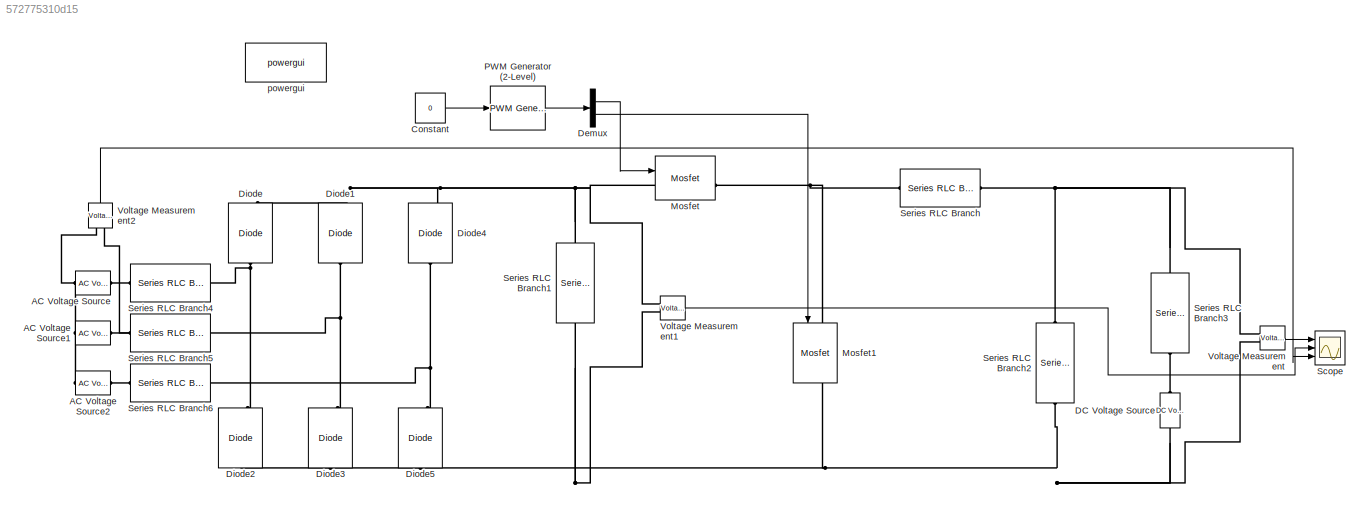
MODEL slx_572775310d15
KIND model
CONFIG AbsTol = auto
CONFIG EnableMultiTasking = off
CONFIG FixedStep = auto
CONFIG MaxStep = auto
CONFIG MinStep = auto
CONFIG RelTol = 1e-3
CONFIG SampleTimeConstraint = Unconstrained
CONFIG SolverName = VariableStepAuto
CONFIG StartTime = 0.0
CONFIG StopTime = 0.2
BLOCK [Reference] AC Voltage Source  REF=powerlib/Electrical
Sources/AC Voltage Source
  Ports = [0, 0, 0, 0, 0, 1, 1]
  SourceBlock = powerlib/Electrical\nSources/AC Voltage Source
  SourceProductBaseCode = PS
  SourceType = AC Voltage Source
BLOCK [Reference] AC Voltage Source1  REF=powerlib/Electrical
Sources/AC Voltage Source
  Ports = [0, 0, 0, 0, 0, 1, 1]
  SourceBlock = powerlib/Electrical\nSources/AC Voltage Source
  SourceProductBaseCode = PS
  SourceType = AC Voltage Source
BLOCK [Reference] AC Voltage Source2  REF=powerlib/Electrical
Sources/AC Voltage Source
  Ports = [0, 0, 0, 0, 0, 1, 1]
  SourceBlock = powerlib/Electrical\nSources/AC Voltage Source
  SourceProductBaseCode = PS
  SourceType = AC Voltage Source
BLOCK [Constant] Constant
  Value = 0
BLOCK [Reference] DC Voltage Source  REF=powerlib/Electrical
Sources/DC Voltage Source
  NameLocation = right
  Ports = [0, 0, 0, 0, 0, 1, 1]
  SourceBlock = powerlib/Electrical\nSources/DC Voltage Source
  SourceProductBaseCode = PS
  SourceType = DC Voltage Source
BLOCK [Demux] Demux
  Outputs = 2
  Ports = [1, 2]
BLOCK [Reference] Diode  REF=powerlib/Power
Electronics/Diode
  NameLocation = right
  Ports = [0, 1, 0, 0, 0, 1, 1]
  SourceBlock = powerlib/Power\nElectronics/Diode
  SourceProductBaseCode = PS
  SourceType = Diode
BLOCK [Reference] Diode1  REF=powerlib/Power
Electronics/Diode
  NameLocation = right
  Ports = [0, 1, 0, 0, 0, 1, 1]
  SourceBlock = powerlib/Power\nElectronics/Diode
  SourceProductBaseCode = PS
  SourceType = Diode
BLOCK [Reference] Diode2  REF=powerlib/Power
Electronics/Diode
  NameLocation = right
  Ports = [0, 1, 0, 0, 0, 1, 1]
  SourceBlock = powerlib/Power\nElectronics/Diode
  SourceProductBaseCode = PS
  SourceType = Diode
BLOCK [Reference] Diode3  REF=powerlib/Power
Electronics/Diode
  NameLocation = right
  Ports = [0, 1, 0, 0, 0, 1, 1]
  SourceBlock = powerlib/Power\nElectronics/Diode
  SourceProductBaseCode = PS
  SourceType = Diode
BLOCK [Reference] Diode4  REF=powerlib/Power
Electronics/Diode
  NameLocation = right
  Ports = [0, 1, 0, 0, 0, 1, 1]
  SourceBlock = powerlib/Power\nElectronics/Diode
  SourceProductBaseCode = PS
  SourceType = Diode
BLOCK [Reference] Diode5  REF=powerlib/Power
Electronics/Diode
  NameLocation = right
  Ports = [0, 1, 0, 0, 0, 1, 1]
  SourceBlock = powerlib/Power\nElectronics/Diode
  SourceProductBaseCode = PS
  SourceType = Diode
BLOCK [Reference] Mosfet  REF=powerlib/Power
Electronics/Mosfet
  Ports = [1, 1, 0, 0, 0, 1, 1]
  SourceBlock = powerlib/Power\nElectronics/Mosfet
  SourceProductBaseCode = PS
  SourceType = Mosfet
BLOCK [Reference] Mosfet1  REF=powerlib/Power
Electronics/Mosfet
  NameLocation = right
  Ports = [1, 1, 0, 0, 0, 1, 1]
  SourceBlock = powerlib/Power\nElectronics/Mosfet
  SourceProductBaseCode = PS
  SourceType = Mosfet
BLOCK [Reference] PWM Generator (2-Level)  REF=powerlib_meascontrol/Pulse & Signal
Generators/PWM Generator
(2-Level)
  Ports = [1, 1]
  SourceBlock = powerlib_meascontrol/Pulse & Signal\nGenerators/PWM Generator\n(2-Level)
  SourceProductBaseCode = PS
  SourceType = PWM Generator (2-Level)
BLOCK [Scope] Scope
  Floating = off
  NumInputPorts = 3
  Ports = [3]
  ScopeSpecificationString = Simulink.scopes.TimeScopeBlockCfg('CurrentConfiguration', extmgr.ConfigurationSet(extmgr.Configuration('Core','General UI',true),extmgr.Configuration('Core','Source UI',true),extmgr.Configuration('Sources','WiredSimulink',true),extmgr.Configuration('Visuals','Time Domain',true,'SerializedDisplays',{struct('MinYLimReal','-200.00000','MaxYLimReal','287.91501','YLabelReal','','MinYLimMag',' 0.00000',...<+1445ch>
BLOCK [Reference] Series RLC Branch  REF=powerlib/Elements/Series RLC Branch
  Ports = [0, 0, 0, 0, 0, 1, 1]
  SourceBlock = powerlib/Elements/Series RLC Branch
  SourceProductBaseCode = PS
  SourceType = Series RLC Branch
BLOCK [Reference] Series RLC Branch1  REF=powerlib/Elements/Series RLC Branch
  NameLocation = left
  Ports = [0, 0, 0, 0, 0, 1, 1]
  SourceBlock = powerlib/Elements/Series RLC Branch
  SourceProductBaseCode = PS
  SourceType = Series RLC Branch
BLOCK [Reference] Series RLC Branch2  REF=powerlib/Elements/Series RLC Branch
  NameLocation = left
  Ports = [0, 0, 0, 0, 0, 1, 1]
  SourceBlock = powerlib/Elements/Series RLC Branch
  SourceProductBaseCode = PS
  SourceType = Series RLC Branch
BLOCK [Reference] Series RLC Branch3  REF=powerlib/Elements/Series RLC Branch
  NameLocation = left
  Ports = [0, 0, 0, 0, 0, 1, 1]
  SourceBlock = powerlib/Elements/Series RLC Branch
  SourceProductBaseCode = PS
  SourceType = Series RLC Branch
BLOCK [Reference] Series RLC Branch4  REF=powerlib/Elements/Series RLC Branch
  Ports = [0, 0, 0, 0, 0, 1, 1]
  SourceBlock = powerlib/Elements/Series RLC Branch
  SourceProductBaseCode = PS
  SourceType = Series RLC Branch
BLOCK [Reference] Series RLC Branch5  REF=powerlib/Elements/Series RLC Branch
  Ports = [0, 0, 0, 0, 0, 1, 1]
  SourceBlock = powerlib/Elements/Series RLC Branch
  SourceProductBaseCode = PS
  SourceType = Series RLC Branch
BLOCK [Reference] Series RLC Branch6  REF=powerlib/Elements/Series RLC Branch
  Ports = [0, 0, 0, 0, 0, 1, 1]
  SourceBlock = powerlib/Elements/Series RLC Branch
  SourceProductBaseCode = PS
  SourceType = Series RLC Branch
BLOCK [Reference] Voltage Measurement  REF=powerlib/Measurements/Voltage Measurement
  Ports = [0, 1, 0, 0, 0, 2]
  SourceBlock = powerlib/Measurements/Voltage Measurement
  SourceProductBaseCode = PS
  SourceType = Voltage Measurement
  UserDataPersistent = on
BLOCK [Reference] Voltage Measurement1  REF=powerlib/Measurements/Voltage Measurement
  Ports = [0, 1, 0, 0, 0, 2]
  SourceBlock = powerlib/Measurements/Voltage Measurement
  SourceProductBaseCode = PS
  SourceType = Voltage Measurement
  UserDataPersistent = on
BLOCK [Reference] Voltage Measurement2  REF=powerlib/Measurements/Voltage Measurement
  NameLocation = right
  Ports = [0, 1, 0, 0, 0, 2]
  SourceBlock = powerlib/Measurements/Voltage Measurement
  SourceProductBaseCode = PS
  SourceType = Voltage Measurement
  UserDataPersistent = on
BLOCK [Reference] powergui  REF=powerlib/powergui
  Ports = []
  Priority = 1
  SourceBlock = powerlib/powergui
  SourceProductBaseCode = PS
  SourceType = PSB option menu block
LINE Constant:1 -> PWM Generator (2-Level):1
LINE Demux:1 -> Mosfet:1
LINE Demux:2 -> Mosfet1:1
LINE PWM Generator (2-Level):1 -> Demux:1
LINE Voltage Measurement1:1 -> Scope:2
LINE Voltage Measurement2:1 -> Scope:3
LINE Voltage Measurement:1 -> Scope:1
PNET net1: AC Voltage Source1:LConn1 -- AC Voltage Source2:LConn1 -- AC Voltage Source:LConn1 -- Voltage Measurement2:LConn1
PNET net2: AC Voltage Source1:RConn1 -- Series RLC Branch5:LConn1 -- Voltage Measurement2:LConn2
PLINE AC Voltage Source2:RConn1 -- Series RLC Branch6:LConn1
PLINE AC Voltage Source:RConn1 -- Series RLC Branch4:LConn1
PNET net3: DC Voltage Source:LConn1 -- Diode2:LConn1 -- Diode3:LConn1 -- Diode5:LConn1 -- Mosfet1:RConn1 -- Series RLC Branch1:RConn1 -- Series RLC Branch2:RConn1 -- Voltage Measurement1:LConn2 -- Voltage Measurement:LConn2
PLINE DC Voltage Source:RConn1 -- Series RLC Branch3:RConn1
PNET net4: Diode1:LConn1 -- Diode3:RConn1 -- Series RLC Branch5:RConn1
PNET net5: Diode1:RConn1 -- Diode4:RConn1 -- Diode:RConn1 -- Mosfet:LConn1 -- Series RLC Branch1:LConn1 -- Voltage Measurement1:LConn1
PNET net6: Diode2:RConn1 -- Diode:LConn1 -- Series RLC Branch4:RConn1
PNET net7: Diode4:LConn1 -- Diode5:RConn1 -- Series RLC Branch6:RConn1
PNET net8: Mosfet1:LConn1 -- Mosfet:RConn1 -- Series RLC Branch:LConn1
PNET net9: Series RLC Branch2:LConn1 -- Series RLC Branch3:LConn1 -- Series RLC Branch:RConn1 -- Voltage Measurement:LConn1
note: PNET lines group multi-terminal physical nets as a canonical sorted terminal list (undirected conserving connections); 2-terminal nets keep the pairwise PLINE form
